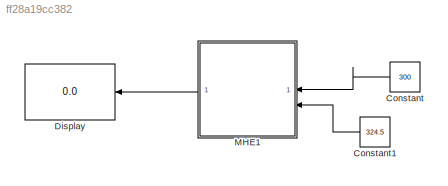
MODEL slx_ff28a19cc382
KIND model
CONFIG AbsTol = auto
CONFIG EnableMultiTasking = off
CONFIG FixedStep = auto
CONFIG MaxStep = auto
CONFIG MinStep = auto
CONFIG RelTol = 1e-3
CONFIG SampleTimeConstraint = Unconstrained
CONFIG SolverName = VariableStepAuto
CONFIG StartTime = 0.0
CONFIG StopTime = 30
BLOCK [Constant] Constant
  Value = 300
BLOCK [Constant] Constant1
  Value = 324.5
BLOCK [Display] Display
  Decimation = 1
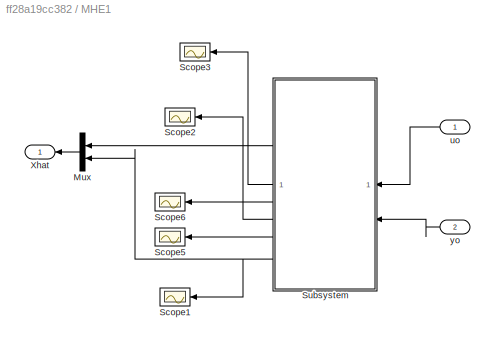
BLOCK [SubSystem] MHE1
BLOCK [Mux] MHE1/Mux
  DisplayOption = bar
  Inputs = 2
BLOCK [Scope] MHE1/Scope1
  Floating = off
  NumInputPorts = 1
  ScopeSpecificationString = Simulink.scopes.TimeScopeBlockCfg('CurrentConfiguration', extmgr.ConfigurationSet(extmgr.Configuration('Core','General UI',true),extmgr.Configuration('Core','Source UI',true),extmgr.Configuration('Sources','WiredSimulink',true,'DataLoggingVariableName','ScopeData1'),extmgr.Configuration('Visuals','Time Domain',true,'SerializedDisplays',{struct('MinYLimReal','8749.54372','MaxYLimReal','8754.10801',...<+1397ch>
BLOCK [Scope] MHE1/Scope2
  Floating = off
  NumInputPorts = 1
  ScopeSpecificationString = Simulink.scopes.TimeScopeBlockCfg('CurrentConfiguration', extmgr.ConfigurationSet(extmgr.Configuration('Core','General UI',true),extmgr.Configuration('Core','Source UI',true),extmgr.Configuration('Sources','WiredSimulink',true,'DataLoggingVariableName','ScopeData3'),extmgr.Configuration('Visuals','Time Domain',true,'SerializedDisplays',{struct('MinYLimReal','0.00304','MaxYLimReal','0.03508','YLabe...<+1373ch>
BLOCK [Scope] MHE1/Scope3
  Floating = off
  NumInputPorts = 1
  ScopeSpecificationString = Simulink.scopes.TimeScopeBlockCfg('CurrentConfiguration', extmgr.ConfigurationSet(extmgr.Configuration('Core','General UI',true),extmgr.Configuration('Core','Source UI',true),extmgr.Configuration('Sources','WiredSimulink',true,'DataLoggingVariableName','ScopeData4'),extmgr.Configuration('Visuals','Time Domain',true,'SerializedDisplays',{struct('MinYLimReal','-2.70623','MaxYLimReal','24.35605','YLa...<+1378ch>
BLOCK [Scope] MHE1/Scope5
  Floating = off
  NumInputPorts = 1
  ScopeSpecificationString = Simulink.scopes.TimeScopeBlockCfg('CurrentConfiguration', extmgr.ConfigurationSet(extmgr.Configuration('Core','General UI',true),extmgr.Configuration('Core','Source UI',true),extmgr.Configuration('Sources','WiredSimulink',true,'DataLoggingVariableName','ScopeData2'),extmgr.Configuration('Visuals','Time Domain',true,'SerializedDisplays',{struct('MinYLimReal','1.00000','MaxYLimReal','3.00000','YLabe...<+1375ch>
BLOCK [Scope] MHE1/Scope6
  Floating = off
  NumInputPorts = 1
  ScopeSpecificationString = Simulink.scopes.TimeScopeBlockCfg('CurrentConfiguration', extmgr.ConfigurationSet(extmgr.Configuration('Core','General UI',true),extmgr.Configuration('Core','Source UI',true),extmgr.Configuration('Sources','WiredSimulink',true,'DataLoggingVariableName','ScopeData2'),extmgr.Configuration('Visuals','Time Domain',true,'SerializedDisplays',{struct('MinYLimReal','-0.14289','MaxYLimReal','0.16211','YLab...<+1408ch>
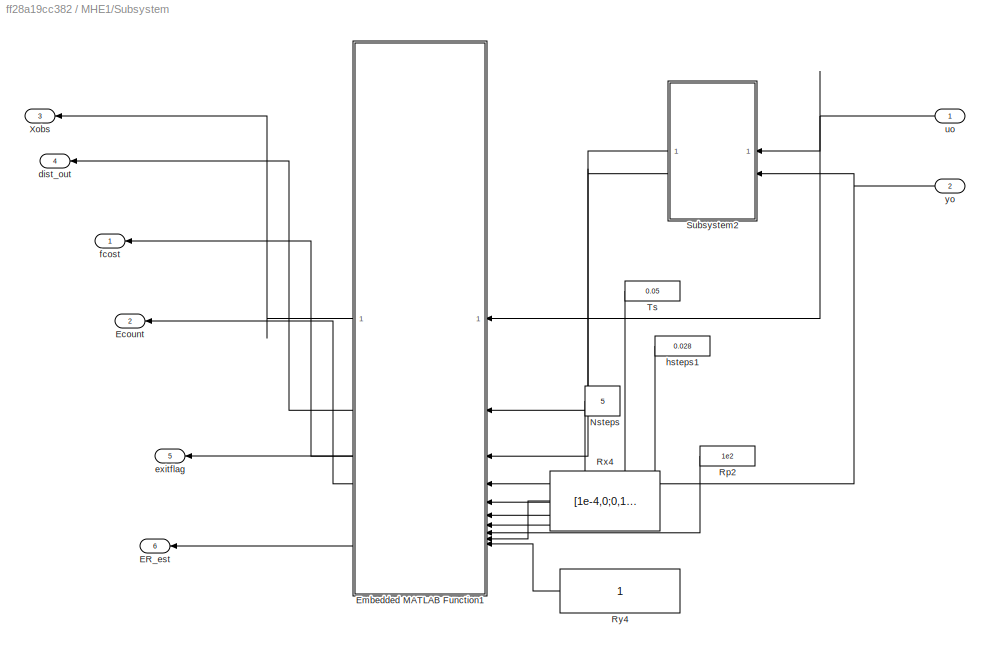
BLOCK [SubSystem] MHE1/Subsystem
BLOCK [Outport] MHE1/Subsystem/ER_est
  Port = 6
  VectorParamsAs1DForOutWhenUnconnected = off
BLOCK [Outport] MHE1/Subsystem/Ecount
  Port = 2
  VectorParamsAs1DForOutWhenUnconnected = off
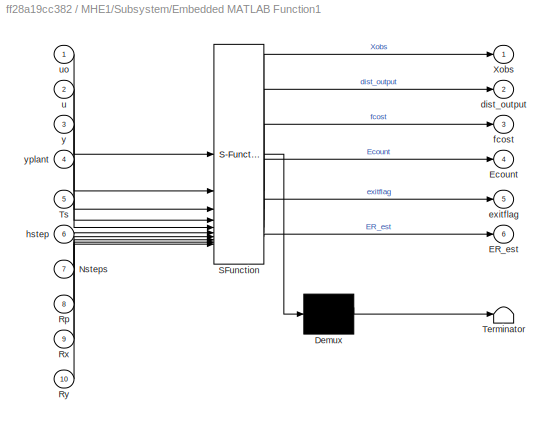
BLOCK [SubSystem] MHE1/Subsystem/Embedded MATLAB Function1
  ErrorFcn = Stateflow.Translate.translate
  PermitHierarchicalResolution = ExplicitOnly
  SFBlockType = MATLAB Function
  TreatAsAtomicUnit = on
BLOCK [Demux] MHE1/Subsystem/Embedded MATLAB Function1/ Demux 
  Outputs = 1
BLOCK [S-Function] MHE1/Subsystem/Embedded MATLAB Function1/ SFunction 
  EnableBusSupport = on
  FunctionName = sf_sfun
  PortCounts = [10 7]
  SFcnIsStateOwnerBlock = off
  SFunctionDeploymentMode = off
  Tag = Stateflow S-Function 1
BLOCK [Terminator] MHE1/Subsystem/Embedded MATLAB Function1/ Terminator 
BLOCK [Outport] MHE1/Subsystem/Embedded MATLAB Function1/ER_est
  Port = 6
BLOCK [Outport] MHE1/Subsystem/Embedded MATLAB Function1/Ecount
  Port = 4
  VectorParamsAs1DForOutWhenUnconnected = off
BLOCK [Inport] MHE1/Subsystem/Embedded MATLAB Function1/Nsteps
  Port = 7
BLOCK [Inport] MHE1/Subsystem/Embedded MATLAB Function1/Rp
  Port = 8
BLOCK [Inport] MHE1/Subsystem/Embedded MATLAB Function1/Rx
  Port = 9
BLOCK [Inport] MHE1/Subsystem/Embedded MATLAB Function1/Ry
  Port = 10
BLOCK [Inport] MHE1/Subsystem/Embedded MATLAB Function1/Ts
  Port = 5
BLOCK [Outport] MHE1/Subsystem/Embedded MATLAB Function1/Xobs
  VectorParamsAs1DForOutWhenUnconnected = off
BLOCK [Outport] MHE1/Subsystem/Embedded MATLAB Function1/dist_output
  Port = 2
BLOCK [Outport] MHE1/Subsystem/Embedded MATLAB Function1/exitflag
  Port = 5
BLOCK [Outport] MHE1/Subsystem/Embedded MATLAB Function1/fcost
  Port = 3
  VectorParamsAs1DForOutWhenUnconnected = off
BLOCK [Inport] MHE1/Subsystem/Embedded MATLAB Function1/hstep
  Port = 6
BLOCK [Inport] MHE1/Subsystem/Embedded MATLAB Function1/u
  Port = 2
BLOCK [Inport] MHE1/Subsystem/Embedded MATLAB Function1/uo
BLOCK [Inport] MHE1/Subsystem/Embedded MATLAB Function1/y
  Port = 3
BLOCK [Inport] MHE1/Subsystem/Embedded MATLAB Function1/yplant
  Port = 4
BLOCK [Constant] MHE1/Subsystem/Nsteps
  Value = 5
BLOCK [Constant] MHE1/Subsystem/Rp2
  Value = 1e2
BLOCK [Constant] MHE1/Subsystem/Rx4
  Value = [1e-4,0;0,1e-6]
BLOCK [Constant] MHE1/Subsystem/Ry4
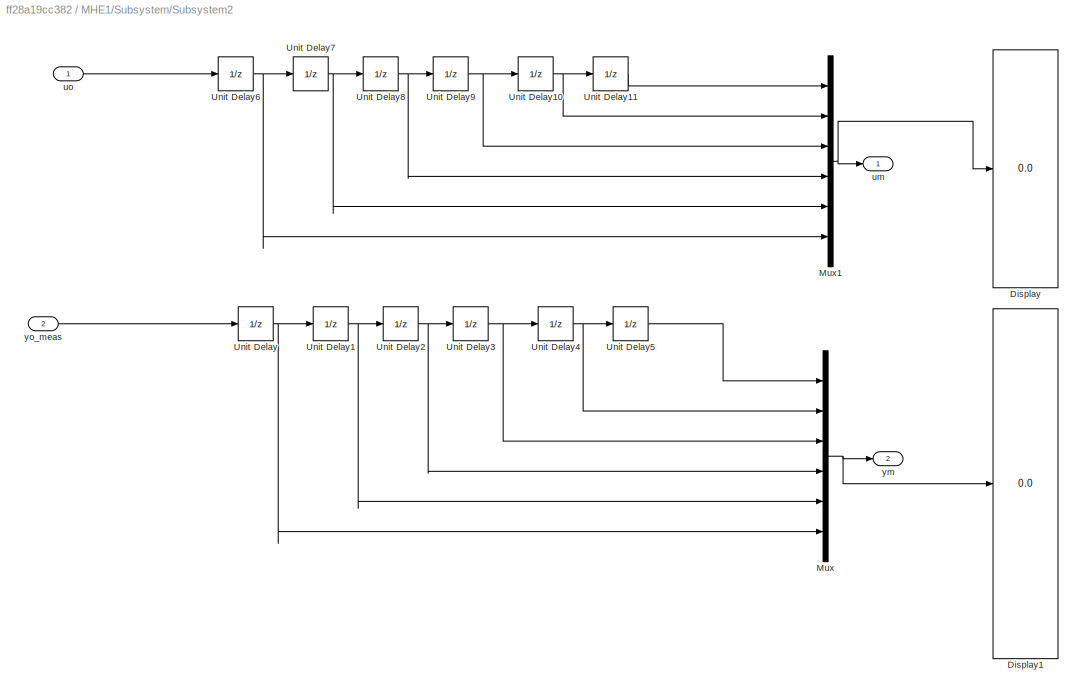
BLOCK [SubSystem] MHE1/Subsystem/Subsystem2
BLOCK [Display] MHE1/Subsystem/Subsystem2/Display
  Decimation = 1
BLOCK [Display] MHE1/Subsystem/Subsystem2/Display1
  Decimation = 1
BLOCK [Mux] MHE1/Subsystem/Subsystem2/Mux
  DisplayOption = bar
  Inputs = 6
BLOCK [Mux] MHE1/Subsystem/Subsystem2/Mux1
  DisplayOption = bar
  Inputs = 6
BLOCK [UnitDelay] MHE1/Subsystem/Subsystem2/Unit Delay
  HasFrameUpgradeWarning = on
  InitialCondition = 324.5
  SampleTime = Ts
BLOCK [UnitDelay] MHE1/Subsystem/Subsystem2/Unit Delay1
  HasFrameUpgradeWarning = on
  InitialCondition = 324.5
  SampleTime = Ts
BLOCK [UnitDelay] MHE1/Subsystem/Subsystem2/Unit Delay10
  HasFrameUpgradeWarning = on
  InitialCondition = 300
  SampleTime = Ts
BLOCK [UnitDelay] MHE1/Subsystem/Subsystem2/Unit Delay11
  HasFrameUpgradeWarning = on
  InitialCondition = 300
  SampleTime = Ts
BLOCK [UnitDelay] MHE1/Subsystem/Subsystem2/Unit Delay2
  HasFrameUpgradeWarning = on
  InitialCondition = 324.5
  SampleTime = Ts
BLOCK [UnitDelay] MHE1/Subsystem/Subsystem2/Unit Delay3
  HasFrameUpgradeWarning = on
  InitialCondition = 324.5
  SampleTime = Ts
BLOCK [UnitDelay] MHE1/Subsystem/Subsystem2/Unit Delay4
  HasFrameUpgradeWarning = on
  InitialCondition = 324.5
  SampleTime = Ts
BLOCK [UnitDelay] MHE1/Subsystem/Subsystem2/Unit Delay5
  HasFrameUpgradeWarning = on
  InitialCondition = 324.5
  SampleTime = Ts
BLOCK [UnitDelay] MHE1/Subsystem/Subsystem2/Unit Delay6
  HasFrameUpgradeWarning = on
  InitialCondition = 300
  SampleTime = Ts
BLOCK [UnitDelay] MHE1/Subsystem/Subsystem2/Unit Delay7
  HasFrameUpgradeWarning = on
  InitialCondition = 300
  SampleTime = Ts
BLOCK [UnitDelay] MHE1/Subsystem/Subsystem2/Unit Delay8
  HasFrameUpgradeWarning = on
  InitialCondition = 300
  SampleTime = Ts
BLOCK [UnitDelay] MHE1/Subsystem/Subsystem2/Unit Delay9
  HasFrameUpgradeWarning = on
  InitialCondition = 300
  SampleTime = Ts
BLOCK [Outport] MHE1/Subsystem/Subsystem2/um
  VectorParamsAs1DForOutWhenUnconnected = off
BLOCK [Inport] MHE1/Subsystem/Subsystem2/uo
BLOCK [Outport] MHE1/Subsystem/Subsystem2/ym
  Port = 2
  VectorParamsAs1DForOutWhenUnconnected = off
BLOCK [Inport] MHE1/Subsystem/Subsystem2/yo_meas
  Port = 2
BLOCK [Constant] MHE1/Subsystem/Ts
  Value = 0.05
BLOCK [Outport] MHE1/Subsystem/Xobs
  Port = 3
  VectorParamsAs1DForOutWhenUnconnected = off
BLOCK [Outport] MHE1/Subsystem/dist_out
  Port = 4
  VectorParamsAs1DForOutWhenUnconnected = off
BLOCK [Outport] MHE1/Subsystem/exitflag
  Port = 5
  VectorParamsAs1DForOutWhenUnconnected = off
BLOCK [Outport] MHE1/Subsystem/fcost
  VectorParamsAs1DForOutWhenUnconnected = off
BLOCK [Constant] MHE1/Subsystem/hsteps1
  Value = 0.028
BLOCK [Inport] MHE1/Subsystem/uo
BLOCK [Inport] MHE1/Subsystem/yo
  Port = 2
BLOCK [Outport] MHE1/Xhat
BLOCK [Inport] MHE1/uo
BLOCK [Inport] MHE1/yo
  Port = 2
LINE Constant1:1 -> MHE1:2
LINE Constant:1 -> MHE1:1
LINE MHE1/Mux:1 -> MHE1/Xhat:1
LINE MHE1/Subsystem/Embedded MATLAB Function1:1 -> MHE1/Subsystem/Xobs:1
LINE MHE1/Subsystem/Embedded MATLAB Function1:2 -> MHE1/Subsystem/dist_out:1
LINE MHE1/Subsystem/Embedded MATLAB Function1:3 -> MHE1/Subsystem/fcost:1
LINE MHE1/Subsystem/Embedded MATLAB Function1:4 -> MHE1/Subsystem/Ecount:1
LINE MHE1/Subsystem/Embedded MATLAB Function1:5 -> MHE1/Subsystem/exitflag:1
LINE MHE1/Subsystem/Embedded MATLAB Function1:6 -> MHE1/Subsystem/ER_est:1
LINE MHE1/Subsystem/Nsteps:1 -> MHE1/Subsystem/Embedded MATLAB Function1:7
LINE MHE1/Subsystem/Rp2:1 -> MHE1/Subsystem/Embedded MATLAB Function1:8
LINE MHE1/Subsystem/Rx4:1 -> MHE1/Subsystem/Embedded MATLAB Function1:9
LINE MHE1/Subsystem/Ry4:1 -> MHE1/Subsystem/Embedded MATLAB Function1:10
NET MHE1/Subsystem/Subsystem2/Mux1:1 -> MHE1/Subsystem/Subsystem2/Display:1, MHE1/Subsystem/Subsystem2/um:1
NET MHE1/Subsystem/Subsystem2/Mux:1 -> MHE1/Subsystem/Subsystem2/Display1:1, MHE1/Subsystem/Subsystem2/ym:1
NET MHE1/Subsystem/Subsystem2/Unit Delay10:1 -> MHE1/Subsystem/Subsystem2/Mux1:2, MHE1/Subsystem/Subsystem2/Unit Delay11:1
LINE MHE1/Subsystem/Subsystem2/Unit Delay11:1 -> MHE1/Subsystem/Subsystem2/Mux1:1
NET MHE1/Subsystem/Subsystem2/Unit Delay1:1 -> MHE1/Subsystem/Subsystem2/Mux:5, MHE1/Subsystem/Subsystem2/Unit Delay2:1
NET MHE1/Subsystem/Subsystem2/Unit Delay2:1 -> MHE1/Subsystem/Subsystem2/Mux:4, MHE1/Subsystem/Subsystem2/Unit Delay3:1
NET MHE1/Subsystem/Subsystem2/Unit Delay3:1 -> MHE1/Subsystem/Subsystem2/Mux:3, MHE1/Subsystem/Subsystem2/Unit Delay4:1
NET MHE1/Subsystem/Subsystem2/Unit Delay4:1 -> MHE1/Subsystem/Subsystem2/Mux:2, MHE1/Subsystem/Subsystem2/Unit Delay5:1
LINE MHE1/Subsystem/Subsystem2/Unit Delay5:1 -> MHE1/Subsystem/Subsystem2/Mux:1
NET MHE1/Subsystem/Subsystem2/Unit Delay6:1 -> MHE1/Subsystem/Subsystem2/Mux1:6, MHE1/Subsystem/Subsystem2/Unit Delay7:1
NET MHE1/Subsystem/Subsystem2/Unit Delay7:1 -> MHE1/Subsystem/Subsystem2/Mux1:5, MHE1/Subsystem/Subsystem2/Unit Delay8:1
NET MHE1/Subsystem/Subsystem2/Unit Delay8:1 -> MHE1/Subsystem/Subsystem2/Mux1:4, MHE1/Subsystem/Subsystem2/Unit Delay9:1
NET MHE1/Subsystem/Subsystem2/Unit Delay9:1 -> MHE1/Subsystem/Subsystem2/Mux1:3, MHE1/Subsystem/Subsystem2/Unit Delay10:1
NET MHE1/Subsystem/Subsystem2/Unit Delay:1 -> MHE1/Subsystem/Subsystem2/Mux:6, MHE1/Subsystem/Subsystem2/Unit Delay1:1
LINE MHE1/Subsystem/Subsystem2/uo:1 -> MHE1/Subsystem/Subsystem2/Unit Delay6:1
LINE MHE1/Subsystem/Subsystem2/yo_meas:1 -> MHE1/Subsystem/Subsystem2/Unit Delay:1
LINE MHE1/Subsystem/Subsystem2:1 -> MHE1/Subsystem/Embedded MATLAB Function1:2
LINE MHE1/Subsystem/Subsystem2:2 -> MHE1/Subsystem/Embedded MATLAB Function1:3
LINE MHE1/Subsystem/Ts:1 -> MHE1/Subsystem/Embedded MATLAB Function1:5
LINE MHE1/Subsystem/hsteps1:1 -> MHE1/Subsystem/Embedded MATLAB Function1:6
NET MHE1/Subsystem/uo:1 -> MHE1/Subsystem/Embedded MATLAB Function1:1, MHE1/Subsystem/Subsystem2:1
NET MHE1/Subsystem/yo:1 -> MHE1/Subsystem/Embedded MATLAB Function1:4, MHE1/Subsystem/Subsystem2:2
LINE MHE1/Subsystem:1 -> MHE1/Scope3:1
LINE MHE1/Subsystem:2 -> MHE1/Scope2:1
LINE MHE1/Subsystem:3 -> MHE1/Mux:1
LINE MHE1/Subsystem:4 -> MHE1/Scope6:1
LINE MHE1/Subsystem:5 -> MHE1/Scope5:1
NET MHE1/Subsystem:6 -> MHE1/Mux:2, MHE1/Scope1:1
LINE MHE1/uo:1 -> MHE1/Subsystem:1
LINE MHE1/yo:1 -> MHE1/Subsystem:2
LINE MHE1:1 -> Display:1
note: NET lines group one-source signal fan-out (src -> all destinations, sorted); 1:1 wires keep LINE
CHART MHE1/Subsystem/Embedded
MATLAB Function1 states=1 transitions=1
  STATE_LABEL 'eML_blk_kernel()'
  STATE_LABEL "SCRIPT:\nfunction [Xobs,dist_output,fcost,Ecount,exitflag,ER_est] =MHE(uo,u,y,yplant,Ts,hstep,Nsteps,Rp,Rx,Ry)\n\n%#codegen\ncoder.extrinsic('MHE_compute','clear_var');\n\num=[u(1),u(2),u(3),u(4),u(5),u(6)] ;\n \n\nymeas=[y(1),y(2),y(3),y(4),y(5),y(6)] ;\n\n\n    \n   \n\n% SAMPLING TIME FOR DISCRETIZATION\n%hstep=1; %sampling time of 10 is with less interation while 5 is smoother but higher interaction\n%Nsteps=1...<+812ch>"
CHART  states=0 transitions=0
